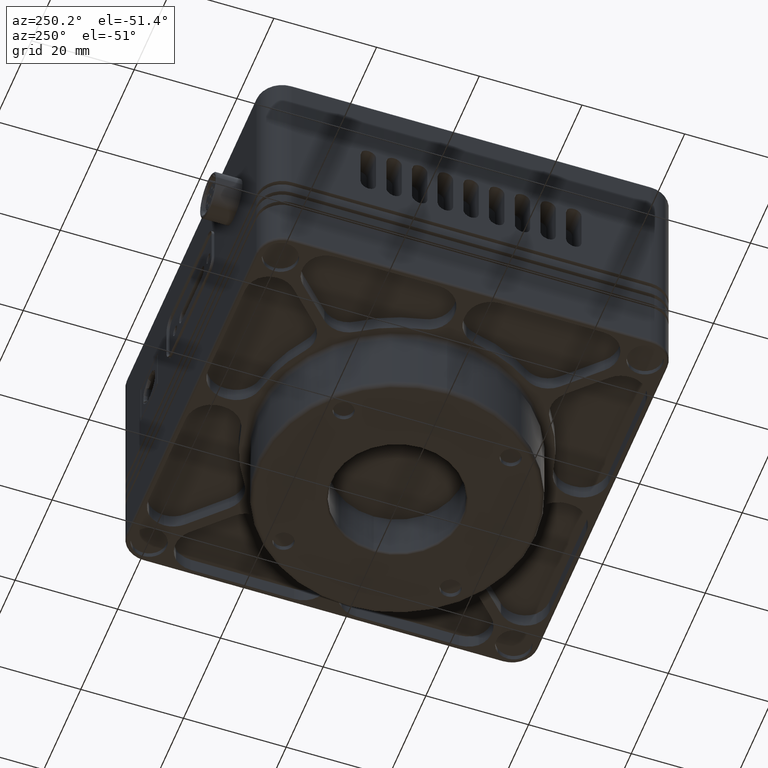
[diagram: clean part render]
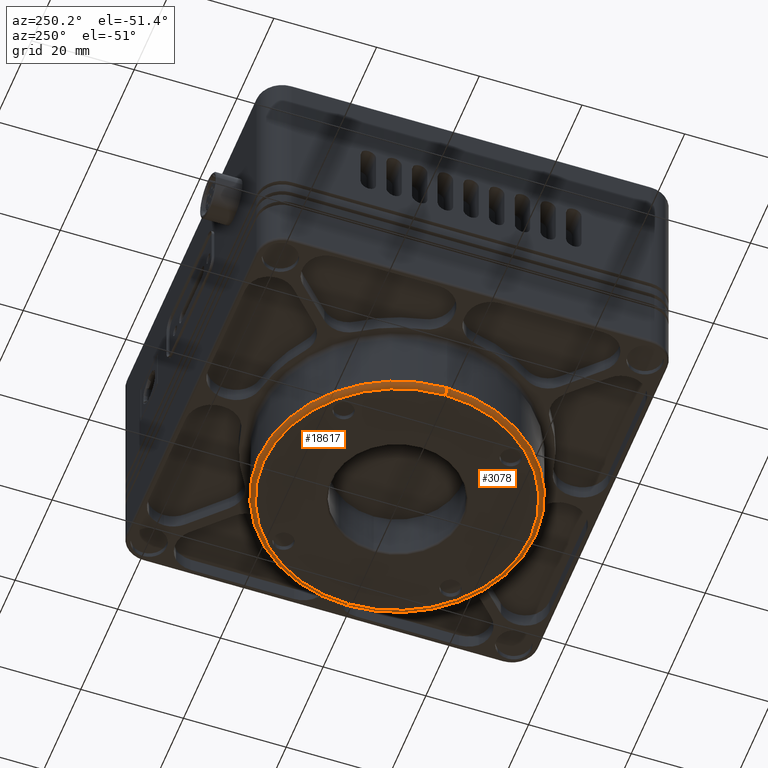
[diagram: same view with one multi-face feature highlighted, each face labeled with its STEP entity id]
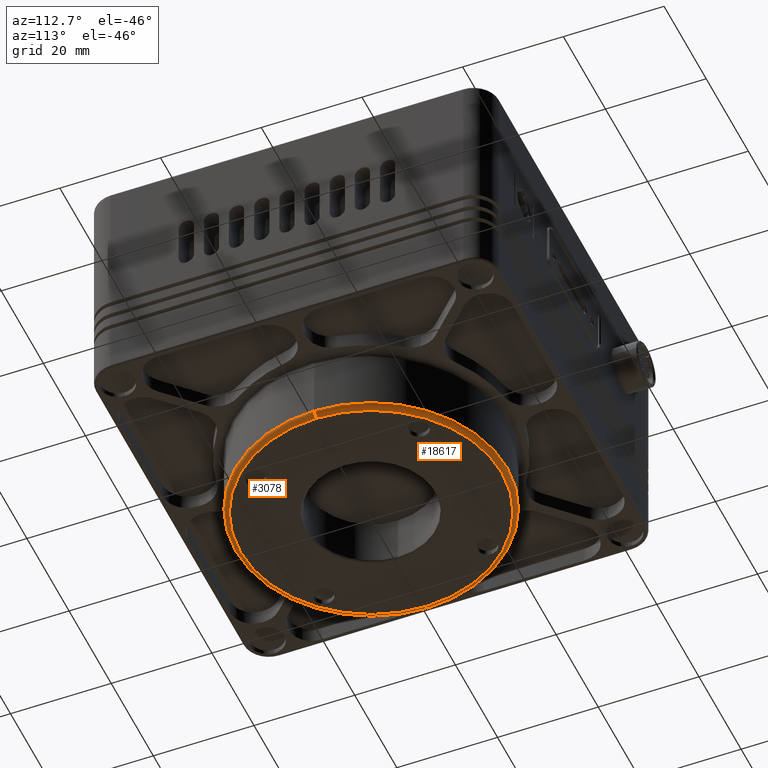
[diagram: same view with one multi-face feature highlighted, each face labeled with its STEP entity id]
A machine part, auxiliary view. The highlighted faces form ONE feature: a constant-radius fillet chain: 2 tangent blend faces with common blend radius 1 mm. The faces share edges in the B-rep.
A second angle (auxiliary view) of the same feature is appended — it is thin or edge-on in the first view.
Their STEP definitions:
[1] entity #3078 (Torus):
#1814 = DIRECTION ( 'NONE',  ( -1.000000000000000000, 0.000000000000000000, 0.000000000000000000 ) ) ;
#3078 = ADVANCED_FACE ( 'NONE', ( #25549 ), #20971, .T. ) ;
#3926 = CARTESIAN_POINT ( 'NONE',  ( -26.00000000000000000, 0.000000000000000000, -29.00000000000000000 ) ) ;
#5735 = CARTESIAN_POINT ( 'NONE',  ( -27.00000000000000000, 0.000000000000000000, -29.00000000000000000 ) ) ;
#7616 = AXIS2_PLACEMENT_3D ( 'NONE', #34432, #10397, #1814 ) ;
#9928 = CARTESIAN_POINT ( 'NONE',  ( 26.00000000000000000, 3.245314017740485765E-15, -30.00000000000000000 ) ) ;
#10397 = DIRECTION ( 'NONE',  ( 0.000000000000000000, 0.000000000000000000, 1.000000000000000000 ) ) ;
#11587 = EDGE_CURVE ( 'NONE', #31519, #43722, #46497, .T. ) ;
#11652 = ORIENTED_EDGE ( 'NONE', *, *, #53704, .F. ) ;
#16534 = AXIS2_PLACEMENT_3D ( 'NONE', #49813, #50625, #46768 ) ;
#17802 = CARTESIAN_POINT ( 'NONE',  ( 0.000000000000000000, 0.000000000000000000, -30.00000000000000000 ) ) ;
#18488 = CIRCLE ( 'NONE', #45826, 26.00000000000000000 ) ;
#20971 = TOROIDAL_SURFACE ( 'NONE', #16534, 26.00000000000000000, 1.000000000000000000 ) ;
#21242 = VERTEX_POINT ( 'NONE', #31414 ) ;
#21454 = AXIS2_PLACEMENT_3D ( 'NONE', #3926, #37618, #30455 ) ;
#22107 = CARTESIAN_POINT ( 'NONE',  ( 26.00000000000000000, 3.184081677783118191E-15, -29.00000000000000000 ) ) ;
#23024 = VERTEX_POINT ( 'NONE', #5735 ) ;
#24386 = EDGE_LOOP ( 'NONE', ( #54355, #11652, #39886, #40700 ) ) ;
#24644 = EDGE_CURVE ( 'NONE', #43722, #21242, #18488, .T. ) ;
#25549 = FACE_OUTER_BOUND ( 'NONE', #24386, .T. ) ;
#27925 = CIRCLE ( 'NONE', #7616, 27.00000000000000000 ) ;
#30455 = DIRECTION ( 'NONE',  ( 0.000000000000000000, 0.000000000000000000, -1.000000000000000000 ) ) ;
#31414 = CARTESIAN_POINT ( 'NONE',  ( -26.00000000000000000, 0.000000000000000000, -30.00000000000000000 ) ) ;
#31519 = VERTEX_POINT ( 'NONE', #49529 ) ;
#34432 = CARTESIAN_POINT ( 'NONE',  ( 0.000000000000000000, 0.000000000000000000, -29.00000000000000000 ) ) ;
#34684 = DIRECTION ( 'NONE',  ( 0.000000000000000000, 0.000000000000000000, -1.000000000000000000 ) ) ;
#37618 = DIRECTION ( 'NONE',  ( -0.000000000000000000, -1.000000000000000000, -0.000000000000000000 ) ) ;
#38928 = DIRECTION ( 'NONE',  ( -1.224646799147353207E-16, 1.000000000000000000, 0.000000000000000000 ) ) ;
#39886 = ORIENTED_EDGE ( 'NONE', *, *, #46435, .T. ) ;
#40021 = DIRECTION ( 'NONE',  ( -1.000000000000000000, -1.224646799147353454E-16, 0.000000000000000000 ) ) ;
#40700 = ORIENTED_EDGE ( 'NONE', *, *, #24644, .F. ) ;
#40870 = CIRCLE ( 'NONE', #21454, 1.000000000000000888 ) ;
#43722 = VERTEX_POINT ( 'NONE', #9928 ) ;
#45826 = AXIS2_PLACEMENT_3D ( 'NONE', #17802, #34684, #47353 ) ;
#46435 = EDGE_CURVE ( 'NONE', #23024, #21242, #40870, .T. ) ;
#46497 = CIRCLE ( 'NONE', #47417, 1.000000000000000888 ) ;
#46768 = DIRECTION ( 'NONE',  ( -1.000000000000000000, 0.000000000000000000, 0.000000000000000000 ) ) ;
#47353 = DIRECTION ( 'NONE',  ( -1.000000000000000000, 0.000000000000000000, 0.000000000000000000 ) ) ;
#47417 = AXIS2_PLACEMENT_3D ( 'NONE', #22107, #38928, #40021 ) ;
#49529 = CARTESIAN_POINT ( 'NONE',  ( 27.00000000000000000, 3.306546357697854128E-15, -29.00000000000000000 ) ) ;
#49813 = CARTESIAN_POINT ( 'NONE',  ( 0.000000000000000000, 0.000000000000000000, -29.00000000000000000 ) ) ;
#50625 = DIRECTION ( 'NONE',  ( 0.000000000000000000, 0.000000000000000000, -1.000000000000000000 ) ) ;
#53704 = EDGE_CURVE ( 'NONE', #23024, #31519, #27925, .T. ) ;
#54355 = ORIENTED_EDGE ( 'NONE', *, *, #11587, .F. ) ;
[2] entity #18617 (Torus):
#1229 = DIRECTION ( 'NONE',  ( 0.000000000000000000, 0.000000000000000000, -1.000000000000000000 ) ) ;
#3890 = DIRECTION ( 'NONE',  ( -1.000000000000000000, 0.000000000000000000, 0.000000000000000000 ) ) ;
#3926 = CARTESIAN_POINT ( 'NONE',  ( -26.00000000000000000, 0.000000000000000000, -29.00000000000000000 ) ) ;
#4050 = ORIENTED_EDGE ( 'NONE', *, *, #51122, .F. ) ;
#5735 = CARTESIAN_POINT ( 'NONE',  ( -27.00000000000000000, 0.000000000000000000, -29.00000000000000000 ) ) ;
#8251 = CIRCLE ( 'NONE', #26826, 27.00000000000000000 ) ;
#8309 = CARTESIAN_POINT ( 'NONE',  ( 0.000000000000000000, 0.000000000000000000, -30.00000000000000000 ) ) ;
#9928 = CARTESIAN_POINT ( 'NONE',  ( 26.00000000000000000, 3.245314017740485765E-15, -30.00000000000000000 ) ) ;
#11587 = EDGE_CURVE ( 'NONE', #31519, #43722, #46497, .T. ) ;
#14643 = CARTESIAN_POINT ( 'NONE',  ( 0.000000000000000000, 0.000000000000000000, -29.00000000000000000 ) ) ;
#15104 = AXIS2_PLACEMENT_3D ( 'NONE', #8309, #42529, #3890 ) ;
#18617 = ADVANCED_FACE ( 'NONE', ( #26674 ), #32708, .T. ) ;
#18765 = EDGE_LOOP ( 'NONE', ( #4050, #27691, #31947, #28384 ) ) ;
#19069 = DIRECTION ( 'NONE',  ( -1.000000000000000000, 0.000000000000000000, 0.000000000000000000 ) ) ;
#19276 = EDGE_CURVE ( 'NONE', #21242, #43722, #31894, .T. ) ;
#21242 = VERTEX_POINT ( 'NONE', #31414 ) ;
#21454 = AXIS2_PLACEMENT_3D ( 'NONE', #3926, #37618, #30455 ) ;
#22107 = CARTESIAN_POINT ( 'NONE',  ( 26.00000000000000000, 3.184081677783118191E-15, -29.00000000000000000 ) ) ;
#23024 = VERTEX_POINT ( 'NONE', #5735 ) ;
#26392 = DIRECTION ( 'NONE',  ( -1.000000000000000000, 0.000000000000000000, 0.000000000000000000 ) ) ;
#26674 = FACE_OUTER_BOUND ( 'NONE', #18765, .T. ) ;
#26826 = AXIS2_PLACEMENT_3D ( 'NONE', #14643, #48311, #19069 ) ;
#27691 = ORIENTED_EDGE ( 'NONE', *, *, #11587, .T. ) ;
#28384 = ORIENTED_EDGE ( 'NONE', *, *, #46435, .F. ) ;
#30455 = DIRECTION ( 'NONE',  ( 0.000000000000000000, 0.000000000000000000, -1.000000000000000000 ) ) ;
#31414 = CARTESIAN_POINT ( 'NONE',  ( -26.00000000000000000, 0.000000000000000000, -30.00000000000000000 ) ) ;
#31519 = VERTEX_POINT ( 'NONE', #49529 ) ;
#31894 = CIRCLE ( 'NONE', #15104, 26.00000000000000000 ) ;
#31947 = ORIENTED_EDGE ( 'NONE', *, *, #19276, .F. ) ;
#32708 = TOROIDAL_SURFACE ( 'NONE', #39747, 26.00000000000000000, 1.000000000000000000 ) ;
#37618 = DIRECTION ( 'NONE',  ( -0.000000000000000000, -1.000000000000000000, -0.000000000000000000 ) ) ;
#38928 = DIRECTION ( 'NONE',  ( -1.224646799147353207E-16, 1.000000000000000000, 0.000000000000000000 ) ) ;
#39070 = CARTESIAN_POINT ( 'NONE',  ( 0.000000000000000000, 0.000000000000000000, -29.00000000000000000 ) ) ;
#39747 = AXIS2_PLACEMENT_3D ( 'NONE', #39070, #1229, #26392 ) ;
#40021 = DIRECTION ( 'NONE',  ( -1.000000000000000000, -1.224646799147353454E-16, 0.000000000000000000 ) ) ;
#40870 = CIRCLE ( 'NONE', #21454, 1.000000000000000888 ) ;
#42529 = DIRECTION ( 'NONE',  ( 0.000000000000000000, 0.000000000000000000, -1.000000000000000000 ) ) ;
#43722 = VERTEX_POINT ( 'NONE', #9928 ) ;
#46435 = EDGE_CURVE ( 'NONE', #23024, #21242, #40870, .T. ) ;
#46497 = CIRCLE ( 'NONE', #47417, 1.000000000000000888 ) ;
#47417 = AXIS2_PLACEMENT_3D ( 'NONE', #22107, #38928, #40021 ) ;
#48311 = DIRECTION ( 'NONE',  ( 0.000000000000000000, 0.000000000000000000, 1.000000000000000000 ) ) ;
#49529 = CARTESIAN_POINT ( 'NONE',  ( 27.00000000000000000, 3.306546357697854128E-15, -29.00000000000000000 ) ) ;
#51122 = EDGE_CURVE ( 'NONE', #31519, #23024, #8251, .T. ) ;